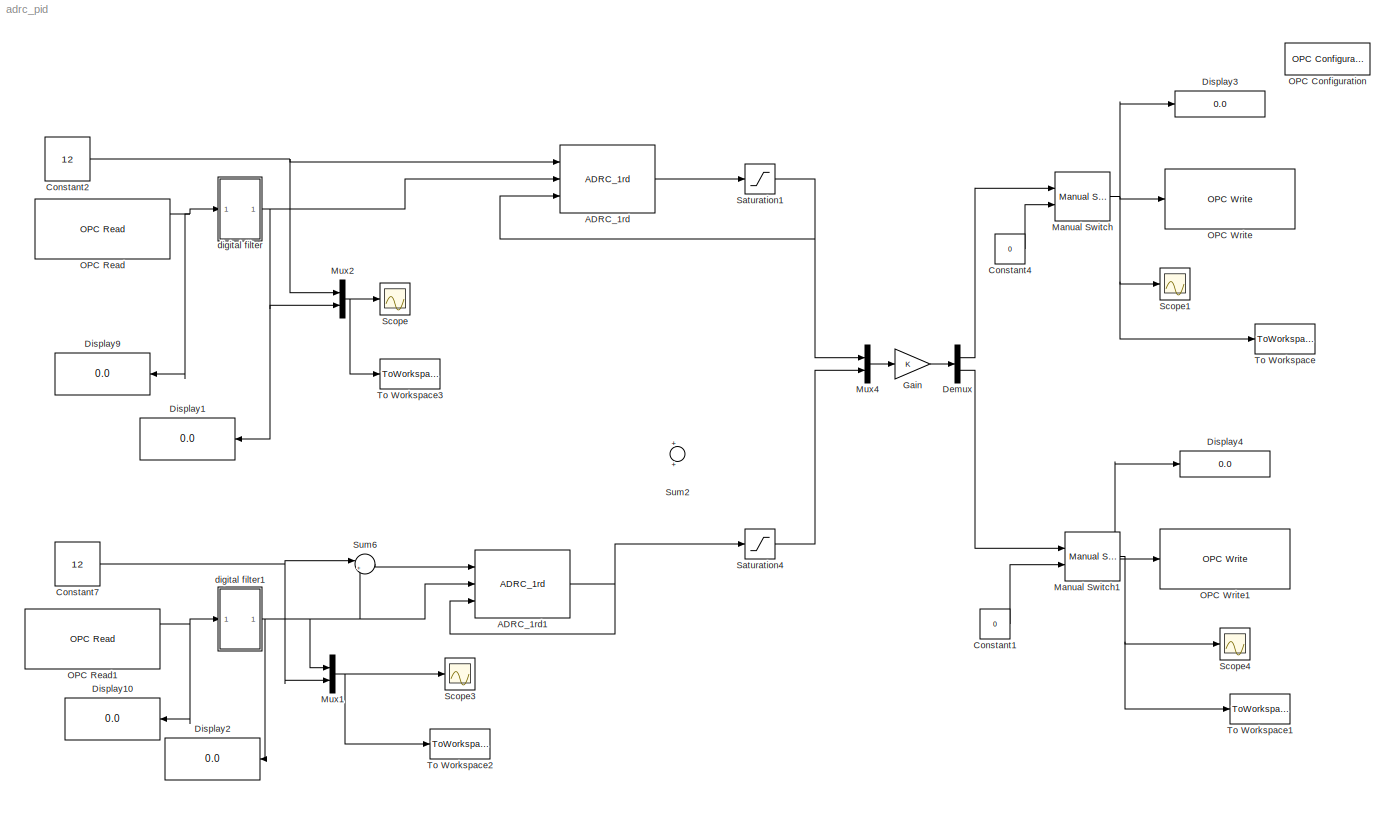
MODEL adrc_pid
KIND model
BLOCK [Reference] ADRC_1rd  REF=ADRC/ADRC/ADRC_1rd/ADRC_1rd
  B01 = 10
  B02 = 20
  FunctionWithSeparateData = off
  GeneratePreprocessorConditionals = off
  Ports = [3, 1]
  RTWMemSecDataConstants = Inherit from model
  RTWMemSecDataInternal = Inherit from model
  RTWMemSecDataParameters = Inherit from model
  RTWMemSecFuncExecute = Inherit from model
  RTWMemSecFuncInitTerm = Inherit from model
  SID = 239
  ShowPortLabels = FromPortIcon
  SourceBlock = ADRC/ADRC/ADRC_1rd/ADRC_1rd
  SystemSampleTime = -1
  h = 0.1
  r = 8
  r0 = 0.01
BLOCK [Reference] ADRC_1rd1  REF=ADRC/ADRC/ADRC_1rd/ADRC_1rd
  B01 = 10
  B02 = 20
  FunctionWithSeparateData = off
  GeneratePreprocessorConditionals = off
  Ports = [3, 1]
  RTWMemSecDataConstants = Inherit from model
  RTWMemSecDataInternal = Inherit from model
  RTWMemSecDataParameters = Inherit from model
  RTWMemSecFuncExecute = Inherit from model
  RTWMemSecFuncInitTerm = Inherit from model
  SID = 240
  ShowPortLabels = FromPortIcon
  SourceBlock = ADRC/ADRC/ADRC_1rd/ADRC_1rd
  SystemSampleTime = -1
  h = 0.1
  r = 8
  r0 = 0.01
BLOCK [Constant] Constant1
  SID = 120
  Value = 0
BLOCK [Constant] Constant2
  SID = 121
  Value = 12
BLOCK [Constant] Constant4
  SID = 122
  Value = 0
BLOCK [Constant] Constant7
  SID = 123
  Value = 12
BLOCK [Demux] Demux
  DisplayOption = bar
  Outputs = 2
  Ports = [1, 2]
  SID = 244
BLOCK [Display] Display1
  Decimation = 1
  Lockdown = off
  Ports = [1]
  SID = 124
BLOCK [Display] Display10
  Decimation = 1
  Lockdown = off
  Ports = [1]
  SID = 125
BLOCK [Display] Display2
  Decimation = 1
  Lockdown = off
  Ports = [1]
  SID = 126
BLOCK [Display] Display3
  Decimation = 1
  Lockdown = off
  Ports = [1]
  SID = 127
BLOCK [Display] Display4
  Decimation = 1
  Lockdown = off
  Ports = [1]
  SID = 128
BLOCK [Display] Display9
  Decimation = 1
  Lockdown = off
  Ports = [1]
  SID = 133
BLOCK [Gain] Gain
  Gain = K
  Multiplication = Matrix(K*u)
  OutDataTypeStr = Inherit: Inherit via internal rule
  ParamDataTypeStr = Inherit: Inherit via internal rule
  SID = 243
  SaturateOnIntegerOverflow = off
BLOCK [Reference] Manual Switch  REF=simulink/Signal\nRouting/Manual Switch
  FunctionWithSeparateData = off
  GeneratePreprocessorConditionals = off
  Ports = [2, 1]
  RTWMemSecDataConstants = Inherit from model
  RTWMemSecDataInternal = Inherit from model
  RTWMemSecDataParameters = Inherit from model
  RTWMemSecFuncExecute = Inherit from model
  RTWMemSecFuncInitTerm = Inherit from model
  SID = 134
  ShowPortLabels = FromPortIcon
  SourceBlock = simulink/Signal\nRouting/Manual Switch
  SourceType = Manual Switch
  SystemSampleTime = -1
  action = 0
  sw = 0
  varsize = off
BLOCK [Reference] Manual Switch1  REF=simulink/Signal\nRouting/Manual Switch
  FunctionWithSeparateData = off
  GeneratePreprocessorConditionals = off
  Ports = [2, 1]
  RTWMemSecDataConstants = Inherit from model
  RTWMemSecDataInternal = Inherit from model
  RTWMemSecDataParameters = Inherit from model
  RTWMemSecFuncExecute = Inherit from model
  RTWMemSecFuncInitTerm = Inherit from model
  SID = 135
  ShowPortLabels = FromPortIcon
  SourceBlock = simulink/Signal\nRouting/Manual Switch
  SourceType = Manual Switch
  SystemSampleTime = -1
  action = 0
  sw = 0
  varsize = off
BLOCK [Mux] Mux1
  DisplayOption = bar
  Inputs = 2
  Ports = [2, 1]
  SID = 136
BLOCK [Mux] Mux2
  DisplayOption = bar
  Inputs = 2
  Ports = [2, 1]
  SID = 137
BLOCK [Mux] Mux4
  DisplayOption = bar
  Inputs = 2
  Ports = [2, 1]
  SID = 241
BLOCK [Reference] OPC Configuration  REF=opclib/OPC Configuration
  Ports = []
  SID = 139
  SourceBlock = opclib/OPC Configuration
  SourceType = OPC Configuration
  beingUsed = on
  errMissingItems = Error
  errRTViolation = None
  errReadWrite = Warn
  errShutdown = Error
  opcServers = localhost/OPCServer.WinCC/10
  rtEnable = on
  showLatency = off
  speedup = 1
BLOCK [Reference] OPC Read  REF=opclib/OPC Read
  Ports = [0, 3]
  SID = 140
  SourceBlock = opclib/OPC Read
  SourceType = OPC Read
  dataType = double
  itemIDs = shuiwei1
  readMode = Synchronous (cache)
  serverHost = localhost
  serverID = OPCServer.WinCC
  showQual = on
  showTS = on
  tsMode = Seconds since start
  updateRate = 0.01
BLOCK [Reference] OPC Read1  REF=opclib/OPC Read
  Ports = [0, 3]
  SID = 141
  SourceBlock = opclib/OPC Read
  SourceType = OPC Read
  dataType = double
  itemIDs = shuiwei2
  readMode = Synchronous (cache)
  serverHost = localhost
  serverID = OPCServer.WinCC
  showQual = on
  showTS = on
  tsMode = Seconds since start
  updateRate = 0.5
BLOCK [Reference] OPC Write  REF=opclib/OPC Write
  Ports = [1]
  SID = 142
  SourceBlock = opclib/OPC Write
  SourceType = OPC Write
  itemIDs = beng1
  serverHost = localhost
  serverID = OPCServer.WinCC
  updateRate = 0
  writeMode = Synchronous
BLOCK [Reference] OPC Write1  REF=opclib/OPC Write
  Ports = [1]
  SID = 143
  SourceBlock = opclib/OPC Write
  SourceType = OPC Write
  itemIDs = beng2
  serverHost = localhost
  serverID = OPCServer.WinCC
  updateRate = 0
  writeMode = Synchronous
BLOCK [Saturate] Saturation1
  InputPortMap = u0
  LowerLimit = 0
  Ports = [1, 1]
  SID = 242
  UpperLimit = 100
BLOCK [Saturate] Saturation4
  InputPortMap = u0
  LowerLimit = 0
  Ports = [1, 1]
  SID = 145
  UpperLimit = 100
BLOCK [Scope] Scope
  DataFormat = Array
  Floating = off
  LimitDataPoints = off
  NumInputPorts = 1
  Ports = [1]
  SID = 146
  SampleTime = 0
  SaveName = shuiwei4
  TimeRange = 1000
  YMax = 20
  YMin = 0
BLOCK [Scope] Scope1
  DataFormat = Array
  Floating = off
  LimitDataPoints = off
  NumInputPorts = 1
  Ports = [1]
  SID = 147
  SampleTime = 0
  SaveName = shuiwei
  SaveToWorkspace = on
  TimeRange = 1000
  YMax = 89.5
  YMin = 82.5
BLOCK [Scope] Scope3
  DataFormat = Array
  Floating = off
  LimitDataPoints = off
  NumInputPorts = 1
  Ports = [1]
  SID = 149
  SampleTime = 0
  SaveName = shuiwei5
  TimeRange = 1000
  YMax = 20
  YMin = 0
BLOCK [Scope] Scope4
  DataFormat = Array
  Floating = off
  LimitDataPoints = off
  NumInputPorts = 1
  Ports = [1]
  SID = 150
  SampleTime = 0
  SaveName = shuiwei3
  SaveToWorkspace = on
  TimeRange = 1000
  YMax = 100
  YMin = 0
BLOCK [Sum] Sum2
  InputSameDT = off
  OutDataTypeStr = Inherit: Inherit via internal rule
  Ports = [2, 1]
  SID = 245
  SaturateOnIntegerOverflow = off
BLOCK [Sum] Sum6
  IconShape = round
  InputSameDT = off
  Inputs = |+-
  OutDataTypeStr = Inherit: Inherit via internal rule
  Ports = [2, 1]
  SID = 206
  SaturateOnIntegerOverflow = off
BLOCK [ToWorkspace] To Workspace
  MaxDataPoints = inf
  Ports = [1]
  SID = 207
  SampleTime = 0.5
  SaveFormat = Array
  VariableName = beng
BLOCK [ToWorkspace] To Workspace1
  MaxDataPoints = inf
  Ports = [1]
  SID = 208
  SampleTime = 0.5
  SaveFormat = Array
  VariableName = beng1
BLOCK [ToWorkspace] To Workspace2
  MaxDataPoints = inf
  Ports = [1]
  SID = 209
  SampleTime = 0.5
  SaveFormat = Array
  VariableName = shuiwei2
BLOCK [ToWorkspace] To Workspace3
  MaxDataPoints = inf
  Ports = [1]
  SID = 210
  SampleTime = 0.5
  SaveFormat = Array
  VariableName = shuiwei1
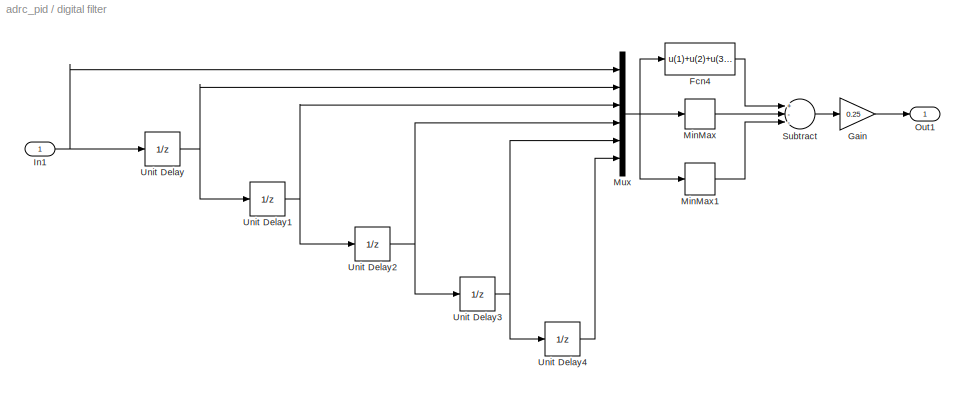
BLOCK [SubSystem] digital filter
  FunctionWithSeparateData = off
  MaskHideContents = off
  MinAlgLoopOccurrences = off
  Opaque = off
  Ports = [1, 1]
  PropExecContextOutsideSubsystem = off
  RTWSystemCode = Auto
  RequestExecContextInheritance = off
  SID = 211
BLOCK [Fcn] digital filter/Fcn4
  Expr = u(1)+u(2)+u(3)+u(4)+u(5)+u(6)
  SID = 213
  SampleTime = 0.5
BLOCK [Gain] digital filter/Gain
  Gain = 0.25
  OutDataTypeStr = Inherit: Inherit via internal rule
  ParamDataTypeStr = Inherit: Inherit via internal rule
  SID = 214
  SaturateOnIntegerOverflow = off
BLOCK [Inport] digital filter/In1
  IconDisplay = Port number
  SID = 212
BLOCK [MinMax] digital filter/MinMax
  Function = min
  InputSameDT = off
  Ports = [1, 1]
  SID = 215
  SaturateOnIntegerOverflow = off
BLOCK [MinMax] digital filter/MinMax1
  Function = max
  InputSameDT = off
  Ports = [1, 1]
  SID = 216
  SaturateOnIntegerOverflow = off
BLOCK [Mux] digital filter/Mux
  DisplayOption = bar
  Inputs = 6
  Ports = [6, 1]
  SID = 217
BLOCK [Outport] digital filter/Out1
  IconDisplay = Port number
  SID = 224
BLOCK [Sum] digital filter/Subtract
  InputSameDT = off
  Inputs = +--
  OutDataTypeStr = Inherit: Inherit via internal rule
  Ports = [3, 1]
  SID = 218
  SaturateOnIntegerOverflow = off
BLOCK [UnitDelay] digital filter/Unit Delay
  InputProcessing = Elements as channels (sample based)
  SID = 219
  SampleTime = 0.5
BLOCK [UnitDelay] digital filter/Unit Delay1
  InputProcessing = Elements as channels (sample based)
  SID = 220
  SampleTime = 0.5
BLOCK [UnitDelay] digital filter/Unit Delay2
  InputProcessing = Elements as channels (sample based)
  SID = 221
  SampleTime = 0.5
BLOCK [UnitDelay] digital filter/Unit Delay3
  InputProcessing = Elements as channels (sample based)
  SID = 222
  SampleTime = 0.5
BLOCK [UnitDelay] digital filter/Unit Delay4
  InputProcessing = Elements as channels (sample based)
  SID = 223
  SampleTime = 0.5
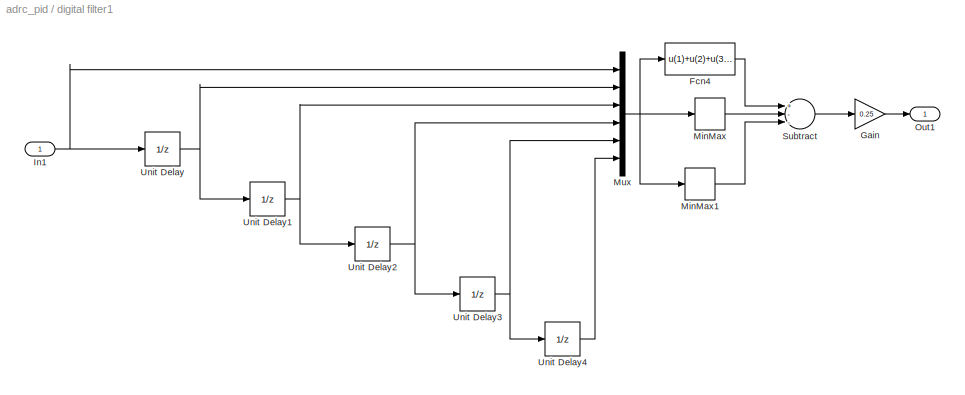
BLOCK [SubSystem] digital filter1
  FunctionWithSeparateData = off
  MaskHideContents = off
  MinAlgLoopOccurrences = off
  Opaque = off
  Ports = [1, 1]
  PropExecContextOutsideSubsystem = off
  RTWSystemCode = Auto
  RequestExecContextInheritance = off
  SID = 225
BLOCK [Fcn] digital filter1/Fcn4
  Expr = u(1)+u(2)+u(3)+u(4)+u(5)+u(6)
  SID = 227
  SampleTime = 0.5
BLOCK [Gain] digital filter1/Gain
  Gain = 0.25
  OutDataTypeStr = Inherit: Inherit via internal rule
  ParamDataTypeStr = Inherit: Inherit via internal rule
  SID = 228
  SaturateOnIntegerOverflow = off
BLOCK [Inport] digital filter1/In1
  IconDisplay = Port number
  SID = 226
BLOCK [MinMax] digital filter1/MinMax
  Function = min
  InputSameDT = off
  Ports = [1, 1]
  SID = 229
  SaturateOnIntegerOverflow = off
BLOCK [MinMax] digital filter1/MinMax1
  Function = max
  InputSameDT = off
  Ports = [1, 1]
  SID = 230
  SaturateOnIntegerOverflow = off
BLOCK [Mux] digital filter1/Mux
  DisplayOption = bar
  Inputs = 6
  Ports = [6, 1]
  SID = 231
BLOCK [Outport] digital filter1/Out1
  IconDisplay = Port number
  SID = 238
BLOCK [Sum] digital filter1/Subtract
  InputSameDT = off
  Inputs = +--
  OutDataTypeStr = Inherit: Inherit via internal rule
  Ports = [3, 1]
  SID = 232
  SaturateOnIntegerOverflow = off
BLOCK [UnitDelay] digital filter1/Unit Delay
  InputProcessing = Elements as channels (sample based)
  SID = 233
  SampleTime = 0.5
BLOCK [UnitDelay] digital filter1/Unit Delay1
  InputProcessing = Elements as channels (sample based)
  SID = 234
  SampleTime = 0.5
BLOCK [UnitDelay] digital filter1/Unit Delay2
  InputProcessing = Elements as channels (sample based)
  SID = 235
  SampleTime = 0.5
BLOCK [UnitDelay] digital filter1/Unit Delay3
  InputProcessing = Elements as channels (sample based)
  SID = 236
  SampleTime = 0.5
BLOCK [UnitDelay] digital filter1/Unit Delay4
  InputProcessing = Elements as channels (sample based)
  SID = 237
  SampleTime = 0.5
NET ADRC_1rd1:1 -> ADRC_1rd1:3, Saturation4:1
LINE ADRC_1rd:1 -> Saturation1:1
LINE Constant1:1 -> Manual Switch1:2
NET Constant2:1 -> ADRC_1rd:1, Mux2:1
LINE Constant4:1 -> Manual Switch:2
NET Constant7:1 -> Mux1:2, Sum6:1
LINE Demux:1 -> Manual Switch:1
LINE Demux:2 -> Manual Switch1:1
LINE Gain:1 -> Demux:1
NET Manual Switch1:1 -> Display4:1, OPC Write1:1, Scope4:1, To Workspace1:1
NET Manual Switch:1 -> Display3:1, OPC Write:1, Scope1:1, To Workspace:1
NET Mux1:1 -> Scope3:1, To Workspace2:1
NET Mux2:1 -> Scope:1, To Workspace3:1
LINE Mux4:1 -> Gain:1
NET OPC Read1:1 -> Display10:1, digital filter1:1
NET OPC Read:1 -> Display9:1, digital filter:1
NET Saturation1:1 -> ADRC_1rd:3, Mux4:1
LINE Saturation4:1 -> Mux4:2
LINE Sum6:1 -> ADRC_1rd1:1
LINE digital filter/Fcn4:1 -> digital filter/Subtract:1
LINE digital filter/Gain:1 -> digital filter/Out1:1
NET digital filter/In1:1 -> digital filter/Mux:1, digital filter/Unit Delay:1
LINE digital filter/MinMax1:1 -> digital filter/Subtract:3
LINE digital filter/MinMax:1 -> digital filter/Subtract:2
NET digital filter/Mux:1 -> digital filter/Fcn4:1, digital filter/MinMax1:1, digital filter/MinMax:1
LINE digital filter/Subtract:1 -> digital filter/Gain:1
NET digital filter/Unit Delay1:1 -> digital filter/Mux:3, digital filter/Unit Delay2:1
NET digital filter/Unit Delay2:1 -> digital filter/Mux:4, digital filter/Unit Delay3:1
NET digital filter/Unit Delay3:1 -> digital filter/Mux:5, digital filter/Unit Delay4:1
LINE digital filter/Unit Delay4:1 -> digital filter/Mux:6
NET digital filter/Unit Delay:1 -> digital filter/Mux:2, digital filter/Unit Delay1:1
LINE digital filter1/Fcn4:1 -> digital filter1/Subtract:1
LINE digital filter1/Gain:1 -> digital filter1/Out1:1
NET digital filter1/In1:1 -> digital filter1/Mux:1, digital filter1/Unit Delay:1
LINE digital filter1/MinMax1:1 -> digital filter1/Subtract:3
LINE digital filter1/MinMax:1 -> digital filter1/Subtract:2
NET digital filter1/Mux:1 -> digital filter1/Fcn4:1, digital filter1/MinMax1:1, digital filter1/MinMax:1
LINE digital filter1/Subtract:1 -> digital filter1/Gain:1
NET digital filter1/Unit Delay1:1 -> digital filter1/Mux:3, digital filter1/Unit Delay2:1
NET digital filter1/Unit Delay2:1 -> digital filter1/Mux:4, digital filter1/Unit Delay3:1
NET digital filter1/Unit Delay3:1 -> digital filter1/Mux:5, digital filter1/Unit Delay4:1
LINE digital filter1/Unit Delay4:1 -> digital filter1/Mux:6
NET digital filter1/Unit Delay:1 -> digital filter1/Mux:2, digital filter1/Unit Delay1:1
NET digital filter1:1 -> ADRC_1rd1:2, Display2:1, Mux1:1, Sum6:2
NET digital filter:1 -> ADRC_1rd:2, Display1:1, Mux2:2
note: NET lines group one-source signal fan-out (src -> all destinations, sorted); 1:1 wires keep LINE
